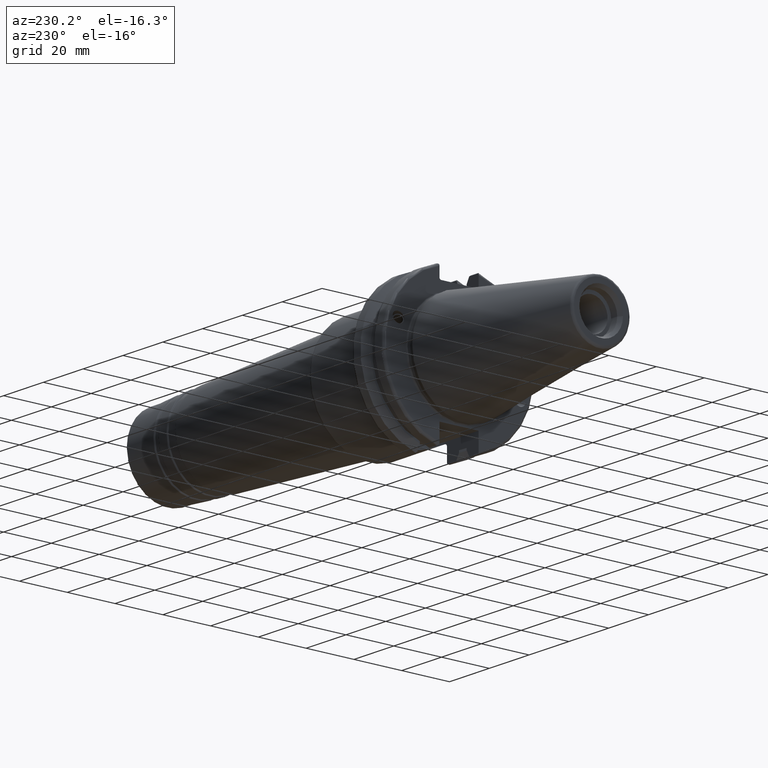
[diagram: clean part render]
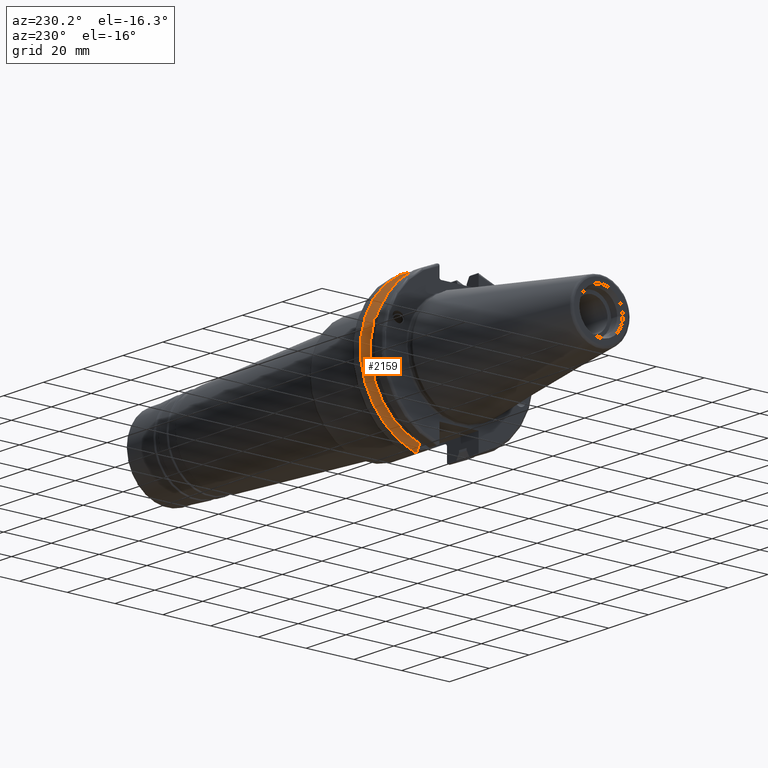
[diagram: same view with one face highlighted and labeled with its STEP entity id]
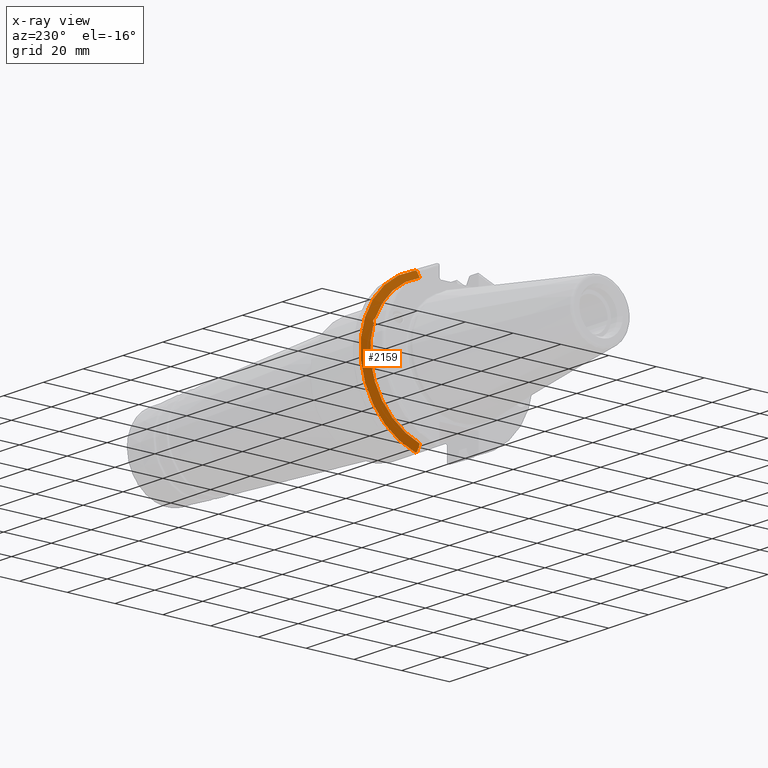
[diagram: x-ray of the same camera — body ghosted, the highlighted face saturated]
A machine part, auxiliary view. The second image highlights one B-rep face of the part: STEP entity #2159.
The next image is the same camera in x-ray: the body ghosted, the highlighted face saturated — about 0% of this face is hidden behind the body in this view.
In plain terms, the highlighted conical surface has half-angle 60 deg.
Its self-contained STEP definition (entity closure, byte-faithful):
#23=(
BOUNDED_CURVE()
B_SPLINE_CURVE(2,(#3966,#3967,#3968),.UNSPECIFIED.,.F.,.F.)
B_SPLINE_CURVE_WITH_KNOTS((3,3),(0.329353533631226,0.393258405001025),
 .UNSPECIFIED.)
CURVE()
GEOMETRIC_REPRESENTATION_ITEM()
RATIONAL_B_SPLINE_CURVE((1.00047644010577,1.00028444218285,1.))
REPRESENTATION_ITEM('')
);
#24=(
BOUNDED_CURVE()
B_SPLINE_CURVE(2,(#3980,#3981,#3982),.UNSPECIFIED.,.F.,.F.)
B_SPLINE_CURVE_WITH_KNOTS((3,3),(0.0550586467393769,0.331607789535852),
 .UNSPECIFIED.)
CURVE()
GEOMETRIC_REPRESENTATION_ITEM()
RATIONAL_B_SPLINE_CURVE((1.00031614444922,1.00095203903643,1.))
REPRESENTATION_ITEM('')
);
#29=(
BOUNDED_CURVE()
B_SPLINE_CURVE(2,(#4149,#4150,#4151),.UNSPECIFIED.,.F.,.F.)
B_SPLINE_CURVE_WITH_KNOTS((3,3),(0.,0.276549142795274),.UNSPECIFIED.)
CURVE()
GEOMETRIC_REPRESENTATION_ITEM()
RATIONAL_B_SPLINE_CURVE((1.,1.00095203903599,1.00031614444907))
REPRESENTATION_ITEM('')
);
#30=(
BOUNDED_CURVE()
B_SPLINE_CURVE(2,(#4166,#4167,#4168),.UNSPECIFIED.,.F.,.F.)
B_SPLINE_CURVE_WITH_KNOTS((3,3),(0.,0.0639048713675655),.UNSPECIFIED.)
CURVE()
GEOMETRIC_REPRESENTATION_ITEM()
RATIONAL_B_SPLINE_CURVE((1.,1.00028444218286,1.00047644010578))
REPRESENTATION_ITEM('')
);
#121=CONICAL_SURFACE('',#2470,30.3546886482472,1.0471975511966);
#153=B_SPLINE_CURVE_WITH_KNOTS('',3,(#3757,#3758,#3759,#3760,#3761,#3762,
#3763,#3764),.UNSPECIFIED.,.F.,.F.,(4,2,2,4),(0.451995700189023,0.464547828547662,
0.504528771685167,0.544509714822672),.UNSPECIFIED.);
#157=B_SPLINE_CURVE_WITH_KNOTS('',3,(#3819,#3820,#3821,#3822,#3823,#3824,
#3825,#3826),.UNSPECIFIED.,.F.,.F.,(4,2,2,4),(0.544509714822672,0.584490657960177,
0.624471601097682,0.637023729456323),.UNSPECIFIED.);
#270=FACE_OUTER_BOUND('',#389,.T.);
#389=EDGE_LOOP('',(#1975,#1976,#1977,#1978,#1979,#1980,#1981,#1982,#1983));
#724=CIRCLE('',#2387,28.9593772964944);
#757=CIRCLE('',#2454,31.75);
#766=CIRCLE('',#2471,28.9593772964944);
#921=VERTEX_POINT('',#3754);
#922=VERTEX_POINT('',#3756);
#929=VERTEX_POINT('',#3817);
#938=VERTEX_POINT('',#3858);
#969=VERTEX_POINT('',#3963);
#970=VERTEX_POINT('',#3965);
#999=VERTEX_POINT('',#4146);
#1000=VERTEX_POINT('',#4148);
#1003=VERTEX_POINT('',#4164);
#1211=EDGE_CURVE('',#922,#921,#153,.T.);
#1219=EDGE_CURVE('',#921,#929,#157,.T.);
#1231=EDGE_CURVE('',#938,#922,#724,.T.);
#1271=EDGE_CURVE('',#969,#970,#23,.T.);
#1276=EDGE_CURVE('',#969,#938,#24,.T.);
#1323=EDGE_CURVE('',#1000,#999,#29,.T.);
#1331=EDGE_CURVE('',#1003,#999,#30,.T.);
#1332=EDGE_CURVE('',#970,#1003,#757,.T.);
#1344=EDGE_CURVE('',#929,#1000,#766,.T.);
#1975=ORIENTED_EDGE('',*,*,#1211,.T.);
#1976=ORIENTED_EDGE('',*,*,#1219,.T.);
#1977=ORIENTED_EDGE('',*,*,#1344,.T.);
#1978=ORIENTED_EDGE('',*,*,#1323,.T.);
#1979=ORIENTED_EDGE('',*,*,#1331,.F.);
#1980=ORIENTED_EDGE('',*,*,#1332,.F.);
#1981=ORIENTED_EDGE('',*,*,#1271,.F.);
#1982=ORIENTED_EDGE('',*,*,#1276,.T.);
#1983=ORIENTED_EDGE('',*,*,#1231,.T.);
#2159=ADVANCED_FACE('',(#270),#121,.T.);
#2387=AXIS2_PLACEMENT_3D('',#3859,#2934,#2935);
#2454=AXIS2_PLACEMENT_3D('',#4170,#3111,#3112);
#2470=AXIS2_PLACEMENT_3D('',#4194,#3146,#3147);
#2471=AXIS2_PLACEMENT_3D('',#4195,#3148,#3149);
#2934=DIRECTION('center_axis',(1.,0.,0.));
#2935=DIRECTION('ref_axis',(0.,0.,-1.));
#3111=DIRECTION('center_axis',(1.,0.,0.));
#3112=DIRECTION('ref_axis',(0.,0.,-1.));
#3146=DIRECTION('center_axis',(1.,0.,0.));
#3147=DIRECTION('ref_axis',(0.,1.,0.));
#3148=DIRECTION('center_axis',(1.,0.,0.));
#3149=DIRECTION('ref_axis',(0.,0.,-1.));
#3754=CARTESIAN_POINT('',(13.2341,27.51401829017,10.0142836826778));
#3756=CARTESIAN_POINT('',(13.0491,27.4956274489925,9.09043478536244));
#3757=CARTESIAN_POINT('Ctrl Pts',(13.0491,27.4956274489925,9.09043478536245));
#3758=CARTESIAN_POINT('Ctrl Pts',(13.0632204071996,27.5087667900418,9.12860597076217));
#3759=CARTESIAN_POINT('Ctrl Pts',(13.0766929817857,27.5206055003512,9.16696618806877));
#3760=CARTESIAN_POINT('Ctrl Pts',(13.130081441159,27.5642934663232,9.32791534028656));
#3761=CARTESIAN_POINT('Ctrl Pts',(13.1682197084175,27.5867382255984,9.46717946402648));
#3762=CARTESIAN_POINT('Ctrl Pts',(13.2204106446058,27.5847569104122,9.74771639360672));
#3763=CARTESIAN_POINT('Ctrl Pts',(13.2341,27.559599249844,9.8890510252165));
#3764=CARTESIAN_POINT('Ctrl Pts',(13.2341,27.51401829017,10.0142836826778));
#3817=CARTESIAN_POINT('',(13.0491,26.9060914640648,10.7101715919071));
#3819=CARTESIAN_POINT('Ctrl Pts',(13.2341,27.51401829017,10.0142836826778));
#3820=CARTESIAN_POINT('Ctrl Pts',(13.2341,27.4684373304961,10.139516340139));
#3821=CARTESIAN_POINT('Ctrl Pts',(13.2204106446058,27.3968610665578,10.2639559818059));
#3822=CARTESIAN_POINT('Ctrl Pts',(13.1682197084175,27.2180531796526,10.4801333026531));
#3823=CARTESIAN_POINT('Ctrl Pts',(13.130081441159,27.1113422433189,10.5723885976054));
#3824=CARTESIAN_POINT('Ctrl Pts',(13.0766929817857,26.9744191989197,10.6676007180674));
#3825=CARTESIAN_POINT('Ctrl Pts',(13.0632204071996,26.9406927482839,10.6893765730703));
#3826=CARTESIAN_POINT('Ctrl Pts',(13.0491,26.9060914640648,10.7101715919071));
#3858=CARTESIAN_POINT('',(13.0491,8.19,-27.7771386827498));
#3859=CARTESIAN_POINT('Origin',(13.0491,0.,0.));
#3963=CARTESIAN_POINT('',(14.3815146964874,8.19,-30.1755016258903));
#3965=CARTESIAN_POINT('',(14.6602667690756,8.67204822802685,-30.5427254764662));
#3966=CARTESIAN_POINT('Ctrl Pts',(14.3815146964874,8.19,-30.1755016258903));
#3967=CARTESIAN_POINT('Ctrl Pts',(14.5192085187884,8.42917748263464,-30.3577067892692));
#3968=CARTESIAN_POINT('Ctrl Pts',(14.6602667690756,8.67204822802686,-30.5427254764662));
#3980=CARTESIAN_POINT('Ctrl Pts',(14.3815146964874,8.18999999999999,-30.1755016258903));
#3981=CARTESIAN_POINT('Ctrl Pts',(13.687736438474,8.19,-28.9303689539668));
#3982=CARTESIAN_POINT('Ctrl Pts',(13.0491,8.19,-27.7771386827498));
#4146=CARTESIAN_POINT('',(14.3815146964874,8.19,30.1755016258903));
#4148=CARTESIAN_POINT('',(13.0491,8.19,27.7771386827498));
#4149=CARTESIAN_POINT('Ctrl Pts',(13.0491,8.19,27.7771386827498));
#4150=CARTESIAN_POINT('Ctrl Pts',(13.687736438489,8.19,28.9303689539938));
#4151=CARTESIAN_POINT('Ctrl Pts',(14.3815146964874,8.19,30.1755016258903));
#4164=CARTESIAN_POINT('',(14.6602667690756,8.67204822802685,30.5427254764662));
#4166=CARTESIAN_POINT('Ctrl Pts',(14.6602667690756,8.67204822802687,30.5427254764662));
#4167=CARTESIAN_POINT('Ctrl Pts',(14.5192085187837,8.42917748262644,30.357706789263));
#4168=CARTESIAN_POINT('Ctrl Pts',(14.3815146964874,8.19,30.1755016258903));
#4170=CARTESIAN_POINT('Origin',(14.6602667690756,0.,0.));
#4194=CARTESIAN_POINT('Origin',(13.8546833845378,0.,0.));
#4195=CARTESIAN_POINT('Origin',(13.0491,0.,0.));